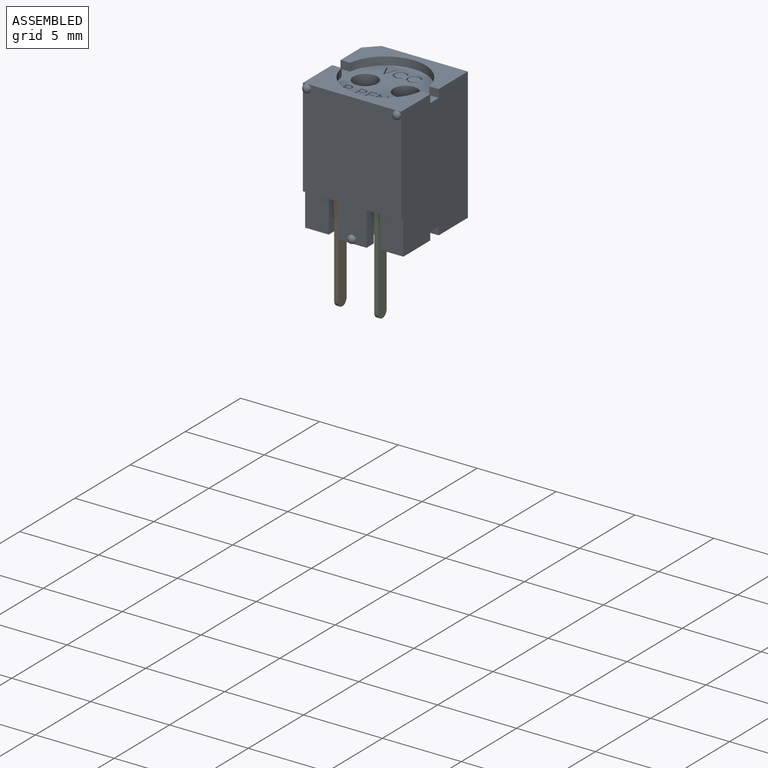
[diagram: assembled view]
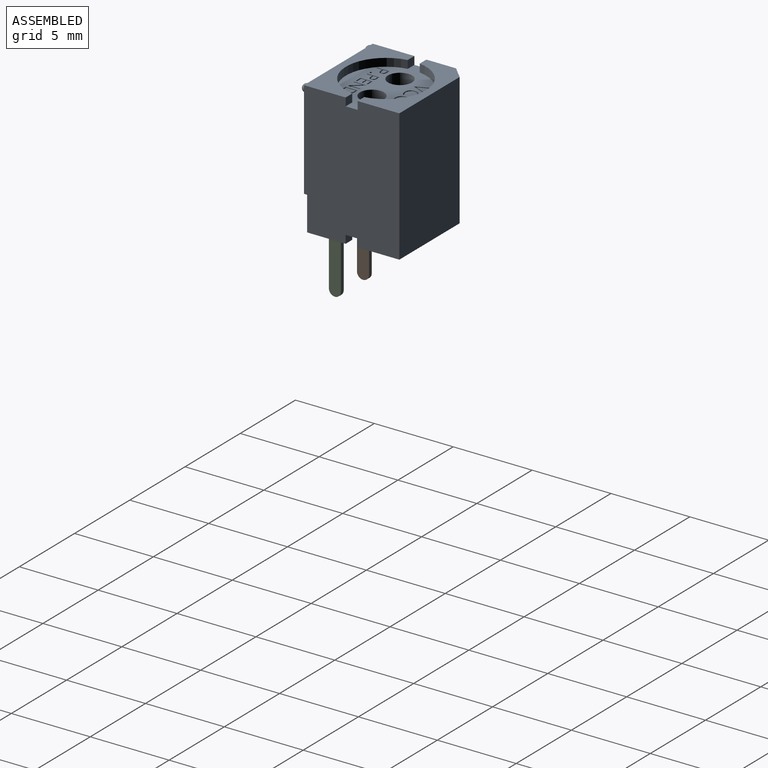
[diagram: assembled view, second angle]
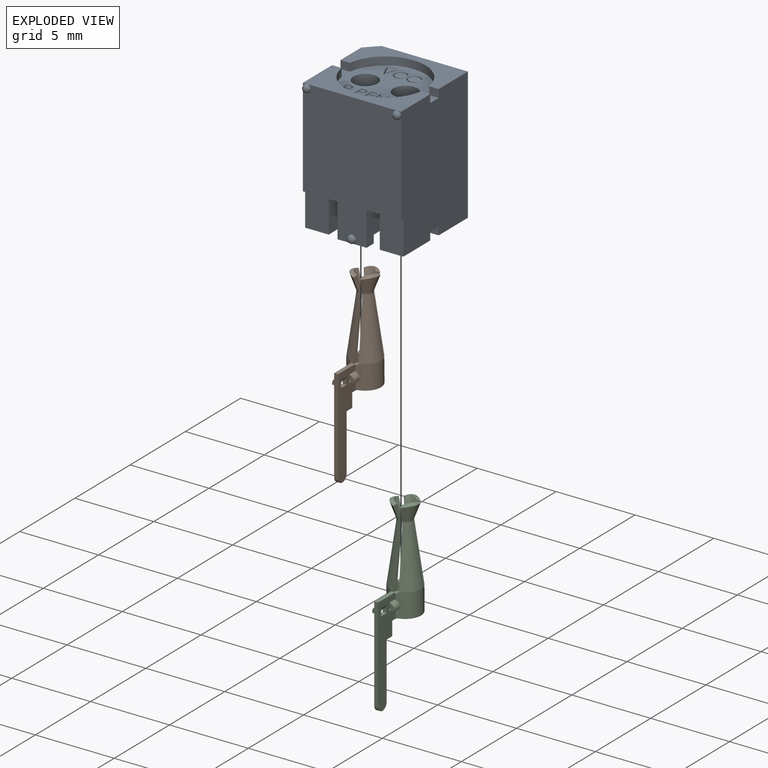
[diagram: exploded view]
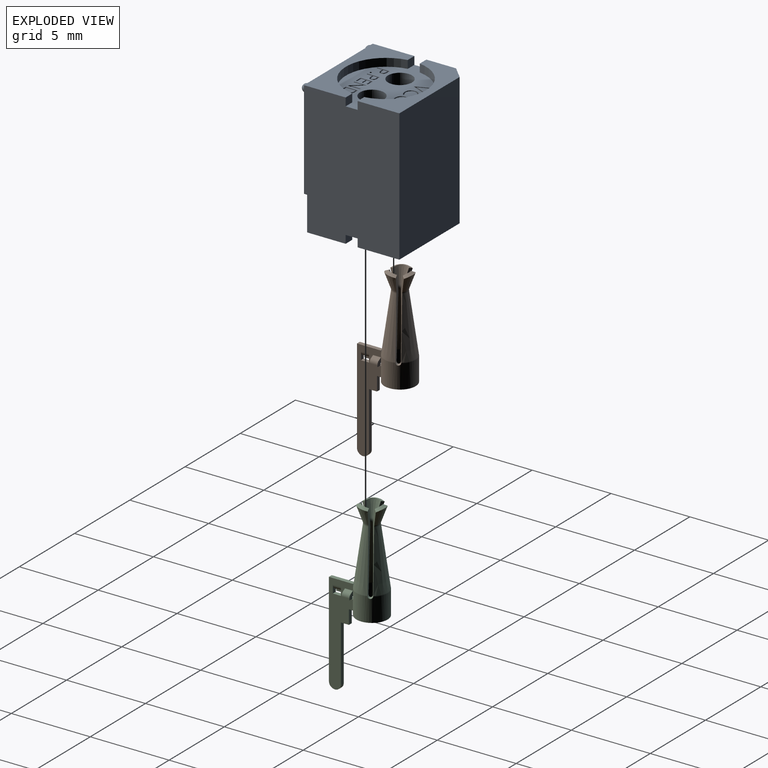
[diagram: exploded view, second angle]
ASSEMBLY  parts=3 mates=4
PART A: 162 faces, bbox 6.2x6.3x8.6 mm
  f0: extruded ~0.24x0.13mm, area 0mm2, adj f1,f120,f146,f147
  f1: extruded ~0.36x0.23mm, area 0.1mm2, adj f0,f2,f120,f147
  f2: extruded ~0.39x0.37mm, area 0.1mm2, adj f1,f39,f120,f147
  f3: extruded ~0.29x0.2mm, area 0mm2, adj f4,f62,f147,f148
  f4: extruded ~0.27x0.18mm, area 0mm2, adj f3,f5,f62,f147
  f5: extruded ~0.22x0.13mm, area 0mm2, adj f4,f58,f62,f147
  f6: cylinder r=0.19mm len=0.19mm, axis (0,0,1), area 0mm2, adj f7,f76,f80,f120
  f7: cylinder r=0.19mm len=0.19mm, axis (0,0,1), area 0mm2, adj f6,f8,f76,f120
  f8: cylinder r=0.89mm len=0.19mm, axis (0,0,1), area 0mm2, adj f7,f76,f120,f156
  f9: extruded ~0.2x0.13mm, area 0mm2, adj f76,f77,f82,f83
  f10: cylinder r=0.06mm len=0.13mm, axis (0,0,1), area 0mm2, adj f11,f13,f84,f120
  f11: cylinder r=0.06mm len=0.13mm, axis (0,0,1), area 0mm2, adj f10,f12,f84,f120
  f12: cylinder r=0.06mm len=0.13mm, axis (0,0,1), area 0mm2, adj f11,f13,f84,f120
  f13: extruded ~0.13x0.06mm, area 0mm2, adj f10,f12,f84,f120
  f14: cylinder r=1.07mm len=6.73mm, axis (0,0,1), area 43.9mm2, adj f28,f42,f74,f133,f144
  f15: cylinder r=0.76mm len=1.52mm, axis (0,0,1), area 3mm2, adj f42,f120
  f16: plane 0.6x0.25mm, normal (-0.92,-0.39,0), area 0.1mm2, adj f30,f35,f120,f159
  f17: plane 0.61x0.13mm, normal (-1,0,0), area 0.1mm2, adj f52,f58,f62,f147
  f18: plane 0.14x0.13mm, normal (0,1,0), area 0mm2, adj f91,f92,f94,f95
  f19: plane 0.13x0.02mm, normal (0,1,0), area 0mm2, adj f26,f71,f120,f151
  f20: plane 8.38x5.28mm, normal (-1,0,0), area 43.1mm2, adj f34,f37,f43,f47,f65,f66,f68,f120
  f21: plane 0.13x0.08mm, normal (-1,0,0), area 0mm2, adj f29,f63,f120,f155
  f22: plane 8.38x5.46mm, normal (0,1,0), area 45.8mm2, adj f37,f47,f124,f129
  f23: plane 0.13x0.07mm, normal (0,-1,0), area 0mm2, adj f35,f54,f120,f159
  f24: plane 2.16x1.81mm, normal (1,0,0), area 3.4mm2, adj f65,f68,f117,f125,f126,f143
  f25: cylinder r=0.2mm len=2.16mm, axis (0,0,1), area 0.7mm2, adj f51,f124,f141,f142
  f26: plane 0.76x0.13mm, normal (-1,0,0), area 0.1mm2, adj f19,f71,f120,f150
  f27: cylinder r=0.2mm len=2.16mm, axis (0,0,1), area 0.7mm2, adj f51,f124,f140,f142
  f28: plane 2.16x1.81mm, normal (-1,0,0), area 3.4mm2, adj f14,f60,f123,f133,f144,f145
  f29: plane 0.76x0.43mm, normal (0,0,1), area 0.1mm2, adj f21,f31,f63,f64,f72,f73,f75,f78
  f30: plane 0.13x0.07mm, normal (0,-1,0), area 0mm2, adj f16,f35,f120,f160
  f31: plane 0.36x0.13mm, normal (0,-1,0), area 0mm2, adj f29,f64,f73,f120
  f32: plane 0.25x0.13mm, normal (-1,0,0), area 0mm2, adj f55,f76,f77,f83
  f33: plane 0.6x0.5mm, normal (-0.77,-0.64,0), area 0.1mm2, adj f36,f71,f120,f149
  f34: plane 0.6x0.51mm, normal (0,-1,0), area 0.3mm2, adj f20,f37,f50,f120
  f35: plane 0.76x0.65mm, normal (0,0,1), area 0.1mm2, adj f16,f23,f30,f54,f158,f159,f160
  f36: plane 0.6x0.13mm, normal (1,0,0), area 0.1mm2, adj f33,f71,f120,f150
  f37: plane 6.22x2.64mm, normal (0,0,1), area 7.9mm2, adj f20,f22,f34,f47,f50,f129,f135
  f38: plane 0.15x0.13mm, normal (0,-1,0), area 0mm2, adj f85,f86,f91,f120
  f39: plane 0.24x0.13mm, normal (0,1,0), area 0mm2, adj f2,f61,f120,f147
  f40: plane 0.35x0.13mm, normal (-1,0,0), area 0mm2, adj f69,f90,f91,f120
  f41: plane 0.13x0.13mm, normal (-0.01,-1,0), area 0mm2, adj f91,f93,f94,f95
  f42: plane 2.13x2.13mm, normal (0,0,-1), area 1.8mm2, adj f14,f15
  f43: plane 0.6x0.51mm, normal (0,-1,0), area 0.3mm2, adj f20,f68,f124,f127
  f44: plane 0.13x0.07mm, normal (0,1,0), area 0mm2, adj f48,f53,f71,f120
  f45: plane 0.8x0.74mm, normal (0,0,1), area 0.1mm2, adj f70,f108,f109,f110,f111,f112,f113,f114
  f46: sphere r=0.25mm, area 0.4mm2, adj f124
  f47: plane 8.38x0.76mm, normal (-0.71,0.71,0), area 9mm2, adj f20,f22,f37,f124
  f48: plane 0.6x0.13mm, normal (-1,0,0), area 0.1mm2, adj f44,f71,f120,f151
  f49: plane 1.84x0.66mm, normal (0,0,-1), area 1mm2, adj f57,f74,f121,f128
  f50: cylinder r=2.54mm len=5.02mm, axis (0,0,-1), area 3.7mm2, adj f34,f37,f120,f135
  f51: plane 1.84x0.7mm, normal (0,0,-1), area 1.2mm2, adj f25,f27,f117,f140,f141,f142
  f52: plane 0.13x0.05mm, normal (0,1,0), area 0mm2, adj f17,f62,f147,f148
  f53: plane 0.76x0.13mm, normal (1,0,0), area 0.1mm2, adj f44,f71,f120,f149
  f54: plane 0.76x0.32mm, normal (-0.92,0.39,0), area 0.1mm2, adj f23,f35,f120,f158
  f55: plane 0.14x0.13mm, normal (0,1,0), area 0mm2, adj f32,f76,f82,f83
  f56: sphere r=0.25mm, area 0.4mm2, adj f121
  f57: plane 2.16x2.01mm, normal (-1,0,0), area 3.7mm2, adj f49,f117,f121,f128,f133,f143
  f58: plane 0.13x0.09mm, normal (0,-1,0), area 0mm2, adj f5,f17,f62,f147
  f59: sphere r=0.25mm, area 0.4mm2, adj f121
  f60: cylinder r=2.54mm len=1.58mm, axis (0,0,1), area 0.9mm2, adj f28,f123,f133,f137
  f61: plane 0.76x0.13mm, normal (1,0,0), area 0.1mm2, adj f39,f120,f146,f147
  f62: plane 0.61x0.49mm, normal (0,0,1), area 0.3mm2, adj f3,f4,f5,f17,f52,f58,f148
  f63: plane 0.36x0.13mm, normal (0,-1,0), area 0mm2, adj f21,f29,f120,f154
  f64: plane 0.13x0.08mm, normal (-1,0,0), area 0mm2, adj f29,f31,f72,f120
  f65: plane 2.16x1.49mm, normal (0,-1,0), area 3.2mm2, adj f20,f24,f125,f143
  f66: plane 0.6x0.51mm, normal (0,1,0), area 0.3mm2, adj f20,f68,f125,f126
  f67: plane 0.35x0.13mm, normal (-1,0,0), area 0mm2, adj f76,f120,f156,f157
  f68: plane 3.91x1.49mm, normal (0,0,-1), area 1.9mm2, adj f20,f24,f43,f66,f117,f126,f127,f141
  f69: plane 0.13x0.07mm, normal (0,1,0), area 0mm2, adj f40,f85,f91,f120
  f70: plane 0.13x0.06mm, normal (-0.61,0.79,0), area 0mm2, adj f45,f108,f109,f120
  f71: plane 0.76x0.59mm, normal (0,0,1), area 0.1mm2, adj f19,f26,f33,f36,f44,f48,f53,f149
  f72: plane 0.43x0.13mm, normal (0,1,0), area 0.1mm2, adj f29,f64,f78,f120
  f73: plane 0.29x0.13mm, normal (-1,0,0), area 0mm2, adj f29,f31,f120,f155
  f74: plane 2.16x2.01mm, normal (1,0,0), area 3.7mm2, adj f14,f49,f121,f128,f133,f144
  f75: plane 0.13x0.08mm, normal (-1,0,0), area 0mm2, adj f29,f120,f152,f153
  f76: plane 0.76x0.47mm, normal (0,0,1), area 0.1mm2, adj f6,f7,f8,f9,f32,f55,f67,f77
  f77: plane 0.13x0.13mm, normal (-0.01,-1,0), area 0mm2, adj f9,f32,f76,f83
  f78: plane 0.76x0.13mm, normal (1,0,0), area 0.1mm2, adj f29,f72,f120,f152
  f79: plane 0.15x0.13mm, normal (0,-1,0), area 0mm2, adj f76,f80,f81,f120
  f80: extruded ~0.17x0.13mm, area 0mm2, adj f6,f76,f79,f120
  f81: plane 0.76x0.13mm, normal (1,0,0), area 0.1mm2, adj f76,f79,f120,f157
  f82: extruded ~0.19x0.13mm, area 0mm2, adj f9,f55,f76,f83
  f83: plane 0.33x0.26mm, normal (0,0,1), area 0.1mm2, adj f9,f32,f55,f77,f82
  f84: plane 0.13x0.13mm, normal (0,0,1), area 0mm2, adj f10,f11,f12,f13
  f85: plane 0.76x0.13mm, normal (1,0,0), area 0.1mm2, adj f38,f69,f91,f120
  f86: cylinder r=0.77mm len=0.17mm, axis (0,0,1), area 0mm2, adj f38,f87,f91,f120
  f87: cylinder r=0.19mm len=0.19mm, axis (0,0,1), area 0mm2, adj f86,f88,f91,f120
  f88: cylinder r=0.19mm len=0.19mm, axis (0,0,1), area 0mm2, adj f87,f89,f91,f120
  f89: cylinder r=0.89mm len=0.19mm, axis (0,0,1), area 0mm2, adj f88,f90,f91,f120
  f90: plane 0.13x0.06mm, normal (0,1,0), area 0mm2, adj f40,f89,f91,f120
  f91: plane 0.76x0.47mm, normal (0,0,1), area 0.1mm2, adj f18,f38,f40,f41,f69,f85,f86,f87
  f92: extruded ~0.19x0.13mm, area 0mm2, adj f18,f91,f93,f95
  f93: extruded ~0.2x0.13mm, area 0mm2, adj f41,f91,f92,f95
  f94: plane 0.25x0.13mm, normal (-1,0,0), area 0mm2, adj f18,f41,f91,f95
  f95: plane 0.33x0.26mm, normal (0,0,1), area 0.1mm2, adj f18,f41,f92,f93,f94
  f96: cylinder r=0.4mm len=0.33mm, axis (0,0,1), area 0mm2, adj f97,f106,f107,f120
  f97: plane 0.13x0.06mm, normal (-0.61,0.79,0), area 0mm2, adj f96,f98,f107,f120
  f98: cylinder r=0.35mm len=0.28mm, axis (0,0,1), area 0mm2, adj f97,f99,f107,f120
  f99: extruded ~0.34x0.32mm, area 0.1mm2, adj f98,f100,f107,f120
  f100: extruded ~0.34x0.32mm, area 0.1mm2, adj f99,f101,f107,f120
  f101: cylinder r=0.35mm len=0.27mm, axis (0,0,1), area 0mm2, adj f100,f102,f107,f120
  f102: plane 0.13x0.06mm, normal (-0.6,-0.8,0), area 0mm2, adj f101,f103,f107,f120
  f103: cylinder r=0.4mm len=0.33mm, axis (0,0,1), area 0mm2, adj f102,f104,f107,f120
  f104: extruded ~0.31x0.13mm, area 0mm2, adj f103,f105,f107,f120
  f105: cylinder r=0.4mm len=0.27mm, axis (0,0,1), area 0mm2, adj f104,f106,f107,f120
  f106: extruded ~0.41x0.4mm, area 0.1mm2, adj f96,f105,f107,f120
  f107: plane 0.8x0.74mm, normal (0,0,1), area 0.1mm2, adj f96,f97,f98,f99,f100,f101,f102,f103
  f108: cylinder r=0.4mm len=0.33mm, axis (0,0,1), area 0mm2, adj f45,f70,f120,f161
  f109: cylinder r=0.35mm len=0.28mm, axis (0,0,1), area 0mm2, adj f45,f70,f110,f120
  f110: extruded ~0.34x0.32mm, area 0.1mm2, adj f45,f109,f111,f120
  f111: extruded ~0.34x0.32mm, area 0.1mm2, adj f45,f110,f112,f120
  f112: cylinder r=0.35mm len=0.27mm, axis (0,0,1), area 0mm2, adj f45,f111,f113,f120
  f113: plane 0.13x0.06mm, normal (-0.6,-0.8,0), area 0mm2, adj f45,f112,f114,f120
  f114: cylinder r=0.4mm len=0.33mm, axis (0,0,1), area 0mm2, adj f45,f113,f115,f120
  f115: extruded ~0.31x0.13mm, area 0mm2, adj f45,f114,f116,f120
  f116: cylinder r=0.4mm len=0.27mm, axis (0,0,1), area 0mm2, adj f45,f115,f120,f161
  f117: cylinder r=1.07mm len=6.73mm, axis (0,0,1), area 42.8mm2, adj f24,f51,f57,f68,f133,f139,f140,f141
  f118: cylinder r=0.76mm len=1.52mm, axis (0,0,1), area 3mm2, adj f120,f139
  f119: sphere r=0.25mm, area 0.4mm2, adj f124
  f120: plane 6.22x5.08mm, normal (0,0,1), area 16mm2, adj f0,f1,f2,f6,f7,f8,f10,f11
  f121: plane 8.38x6.22mm, normal (0,-1,0), area 42.1mm2, adj f20,f49,f56,f57,f59,f74,f122,f129
  f122: sphere r=0.25mm, area 0.4mm2, adj f121
  f123: plane 2.44x1.49mm, normal (0,0,-1), area 2.7mm2, adj f28,f60,f129,f137,f145
  f124: plane 6.22x2.64mm, normal (0,0,-1), area 7.1mm2, adj f20,f22,f25,f27,f43,f46,f47,f119
  f125: plane 2.44x1.49mm, normal (0,0,-1), area 2.7mm2, adj f20,f24,f65,f66,f126
  f126: cylinder r=2.54mm len=1.58mm, axis (0,0,1), area 0.9mm2, adj f24,f66,f68,f125
  f127: cylinder r=2.54mm len=1.58mm, axis (0,0,1), area 0.9mm2, adj f43,f68,f124,f141
  f128: cylinder r=2.54mm len=1.84mm, axis (0,0,1), area 1mm2, adj f49,f57,f74,f133
  f129: plane 8.38x6.05mm, normal (1,0,0), area 49.5mm2, adj f22,f37,f120,f121,f123,f124,f130,f133
  f130: plane 6.22x2.64mm, normal (0,0,1), area 8.2mm2, adj f20,f121,f129,f131,f134,f136
  f131: cylinder r=2.54mm len=5.02mm, axis (0,0,-1), area 3.7mm2, adj f120,f130,f134,f136
  f132: cylinder r=2.54mm len=3.43mm, axis (0,0,1), area 2.3mm2, adj f124,f133,f138,f140
  f133: plane 5.08x4.03mm, normal (0,0,-1), area 9.7mm2, adj f14,f28,f57,f60,f74,f117,f128,f129
  f134: plane 0.6x0.51mm, normal (0,1,0), area 0.3mm2, adj f20,f120,f130,f131
  f135: plane 0.6x0.51mm, normal (0,-1,0), area 0.3mm2, adj f37,f50,f120,f129
  f136: plane 0.6x0.51mm, normal (0,1,0), area 0.3mm2, adj f120,f129,f130,f131
  f137: plane 0.6x0.51mm, normal (0,1,0), area 0.3mm2, adj f60,f123,f129,f133
  f138: plane 0.6x0.51mm, normal (0,-1,0), area 0.3mm2, adj f124,f129,f132,f133
  f139: plane 2.13x2.13mm, normal (0,0,-1), area 1.8mm2, adj f117,f118
  f140: plane 2.16x1.63mm, normal (-1,0,0), area 2.8mm2, adj f27,f51,f117,f124,f132,f133
  f141: plane 2.16x1.63mm, normal (1,0,0), area 3mm2, adj f25,f51,f68,f117,f124,f127
  f142: plane 2.16x0.29mm, normal (0,-1,0), area 0.6mm2, adj f25,f27,f51,f124
  f143: plane 2.19x2.01mm, normal (0,0,-1), area 1.7mm2, adj f20,f24,f57,f65,f117,f121
  f144: plane 2.19x2.01mm, normal (0,0,-1), area 1.7mm2, adj f14,f28,f74,f121,f129,f145
  f145: plane 2.16x1.49mm, normal (0,-1,0), area 3.2mm2, adj f28,f123,f129,f144
  f146: plane 0.15x0.13mm, normal (0,-1,0), area 0mm2, adj f0,f61,f120,f147
  f147: plane 0.76x0.63mm, normal (0,0,1), area 0.2mm2, adj f0,f1,f2,f3,f4,f5,f17,f39
  f148: extruded ~0.23x0.13mm, area 0mm2, adj f3,f52,f62,f147
  f149: plane 0.13x0.01mm, normal (0,-1,0), area 0mm2, adj f33,f53,f71,f120
  f150: plane 0.13x0.07mm, normal (0,-1,0), area 0mm2, adj f26,f36,f71,f120
  f151: plane 0.6x0.5mm, normal (0.77,0.64,0), area 0.1mm2, adj f19,f48,f71,f120
  f152: plane 0.43x0.13mm, normal (0,-1,0), area 0.1mm2, adj f29,f75,f78,f120
  f153: plane 0.36x0.13mm, normal (0,1,0), area 0mm2, adj f29,f75,f120,f154
  f154: plane 0.23x0.13mm, normal (-1,0,0), area 0mm2, adj f29,f63,f120,f153
  f155: plane 0.36x0.13mm, normal (0,1,0), area 0mm2, adj f21,f29,f73,f120
  f156: plane 0.13x0.06mm, normal (0,1,0), area 0mm2, adj f8,f67,f76,f120
  f157: plane 0.13x0.07mm, normal (0,1,0), area 0mm2, adj f67,f76,f81,f120
  f158: plane 0.13x0.01mm, normal (0,1,0), area 0mm2, adj f35,f54,f120,f160
  f159: plane 0.6x0.25mm, normal (0.92,-0.39,0), area 0.1mm2, adj f16,f23,f35,f120
  f160: plane 0.76x0.32mm, normal (0.92,0.39,0), area 0.1mm2, adj f30,f35,f120,f158
  f161: extruded ~0.41x0.4mm, area 0.1mm2, adj f45,f108,f116,f120
PART B: 89 faces, bbox 2.2x3.7x11.3 mm
  f0: cone r=0.74mm half-angle=8deg, axis (0,0,1), area 2.9mm2, adj f12,f23,f36,f88
  f1: cone r=0.22mm half-angle=20deg, axis (0,0,-1), area 0.7mm2, adj f12,f16,f80,f83,f88
  f2: plane 0.95x0.42mm, normal (0.76,-0.65,0), area 0.2mm2, adj f3,f4,f48,f84
  f3: bspline ~0.52x0.41mm, area 0.1mm2, adj f2,f4,f48,f78
  f4: cone r=0.46mm half-angle=20deg, axis (0,0,-1), area 0.9mm2, adj f2,f3,f13,f37,f78
  f5: torus R=0.74mm, axis (0,0,-1), area 0mm2, adj f27,f42,f44
  f6: cylinder r=0.03mm len=0.51mm, axis (0,1,0), area 0mm2, adj f53,f54,f57,f58
  f7: plane 3.56x0.25mm, normal (0,1,0), area 0.9mm2, adj f8,f9,f45,f52
  f8: cylinder r=0.38mm len=0.76mm, axis (-1,0,0), area 0.3mm2, adj f7,f45,f52,f85
  f9: plane 0.51x0.25mm, normal (0,0,1), area 0.1mm2, adj f7,f45,f52,f76
  f10: torus R=0.72mm, axis (0,0,1), area 0.1mm2, adj f38,f48,f49,f84
  f11: torus R=0.72mm, axis (0,0,1), area 0.1mm2, adj f24,f50,f79,f87
  f12: torus R=0.72mm, axis (0,0,1), area 0.1mm2, adj f0,f1,f14,f88
  f13: torus R=0.72mm, axis (0,0,1), area 0.1mm2, adj f4,f38,f41,f84
  f14: bspline ~0.27x0.24mm, area 0mm2, adj f12,f22,f36,f83
  f15: bspline ~3.78x0.63mm, area 1mm2, adj f35,f38,f41,f49
  f16: bspline ~0.63x0.29mm, area 0.1mm2, adj f1,f26,f80,f83
  f17: bspline ~0.6x0.51mm, area 0.2mm2, adj f19,f43,f50,f87
  f18: bspline ~3.77x0.71mm, area 1mm2, adj f24,f25,f79,f82
  f19: bspline ~0.63x0.29mm, area 0.1mm2, adj f17,f20,f43,f50
  f20: bspline ~1x0.53mm, area 0.2mm2, adj f19,f43,f50,f79
  f21: torus R=0.72mm, axis (0,0,1), area 0.1mm2, adj f25,f43,f79,f87
  f22: torus R=0.72mm, axis (0,0,1), area 0.1mm2, adj f14,f26,f42,f88
  f23: cylinder r=0.74mm len=1.51mm, axis (0,0,-1), area 6.3mm2, adj f0,f24,f28,f35,f49,f51,f82,f87
  f24: cone r=0.74mm half-angle=8deg, axis (0,0,1), area 2.9mm2, adj f11,f18,f23,f87
  f25: cone r=0.99mm half-angle=8deg, axis (0,0,1), area 4.3mm2, adj f18,f21,f47,f87
  f26: cone r=0.46mm half-angle=20deg, axis (0,0,-1), area 1mm2, adj f16,f22,f80,f83,f88
  f27: cylinder r=0.99mm len=1.98mm, axis (0,0,-1), area 8.5mm2, adj f5,f28,f35,f44,f46,f47,f82,f87
  f28: plane 2.36x1.98mm, normal (0,0,1), area 1.4mm2, adj f23,f27,f44,f45,f51,f52,f76,f87
  f29: plane 0.51x0.25mm, normal (0,1,0), area 0.1mm2, adj f40,f45,f52,f66,f74
  f30: plane 0.01x0mm, normal (0,0,1), area 0mm2, adj f31,f44,f73
  f31: plane 0x0mm, normal (0.05,-1,0), area 0mm2, adj f30,f44,f73
  f32: plane 0.49x0.26mm, normal (0.05,-1,0), area 0.1mm2, adj f40,f44,f51,f66,f74
  f33: plane 0.51x0.25mm, normal (0,-1,0), area 0.1mm2, adj f34,f45,f52,f56,f57
  f34: plane 0.51x0.25mm, normal (0,0,-1), area 0.1mm2, adj f33,f39,f45,f52
  f35: bspline ~0.36x0.35mm, area 0.1mm2, adj f15,f23,f27,f36
  f36: bspline ~3.74x0.71mm, area 0.9mm2, adj f0,f14,f35,f42
  f37: plane 0.95x0.42mm, normal (-0.76,-0.65,0), area 0.2mm2, adj f4,f38,f48,f78
  f38: bspline ~0.24x0.21mm, area 0mm2, adj f10,f13,f15,f37
  f39: plane 0.51x0.25mm, normal (0,1,0), area 0.1mm2, adj f34,f45,f52,f56,f57
  f40: plane 0.52x0.25mm, normal (0,0,-1), area 0.1mm2, adj f29,f32,f44,f45,f51,f52
  f41: cone r=0.99mm half-angle=8deg, axis (0,0,1), area 4.4mm2, adj f13,f15,f46,f81
  f42: cone r=0.99mm half-angle=8deg, axis (0,0,1), area 4.4mm2, adj f5,f22,f36,f88
  f43: cone r=0.46mm half-angle=20deg, axis (0,0,-1), area 1mm2, adj f17,f19,f20,f21,f87
  f44: cylinder r=0.17mm len=1.53mm, axis (0,0,-1), area 0.3mm2, adj f5,f27,f28,f30,f31,f32,f40,f45
  f45: plane 6.35x1.52mm, normal (-1,0,0), area 5.9mm2, adj f7,f8,f9,f28,f29,f33,f34,f39
  f46: torus R=0.74mm, axis (0,0,-1), area 0mm2, adj f27,f41
  f47: torus R=0.74mm, axis (0,0,-1), area 0.1mm2, adj f25,f27,f87
  f48: cone r=0.22mm half-angle=20deg, axis (0,0,-1), area 0.6mm2, adj f2,f3,f10,f37,f78
  f49: cone r=0.74mm half-angle=8deg, axis (0,0,1), area 3mm2, adj f10,f15,f23,f81
  f50: cone r=0.22mm half-angle=20deg, axis (0,0,-1), area 0.6mm2, adj f11,f17,f19,f20,f87
  f51: cylinder r=0.43mm len=1.52mm, axis (0,0,-1), area 0.8mm2, adj f23,f28,f32,f40,f52,f63,f64,f86
  f52: plane 6.35x1.52mm, normal (1,0,0), area 5.9mm2, adj f7,f8,f9,f28,f29,f33,f34,f39
  f53: plane 0.46x0.31mm, normal (0,-1,0), area 0.1mm2, adj f6,f52,f55,f57,f58,f59,f60,f61
  f54: plane 0.46x0.31mm, normal (0,1,0), area 0.1mm2, adj f6,f52,f55,f57,f58,f59,f60,f61
  f55: cylinder r=0.03mm len=0.51mm, axis (0,1,0), area 0mm2, adj f52,f53,f54,f62
  f56: cylinder r=0.28mm len=0.51mm, axis (0,1,0), area 0.1mm2, adj f33,f39,f45,f57
  f57: plane 0.51x0.15mm, normal (-0.5,0,0.87), area 0.1mm2, adj f6,f33,f39,f53,f54,f56
  f58: plane 0.51x0.11mm, normal (-1,0,0), area 0.1mm2, adj f6,f53,f54,f59
  f59: plane 0.51x0.25mm, normal (0,0,1), area 0.1mm2, adj f53,f54,f58,f60
  f60: plane 0.51x0.11mm, normal (1,0,0), area 0.1mm2, adj f53,f54,f59,f61
  f61: cylinder r=0.28mm len=0.51mm, axis (0,1,0), area 0.1mm2, adj f53,f54,f60,f62
  f62: plane 0.51x0.15mm, normal (0.5,0,-0.87), area 0.1mm2, adj f53,f54,f55,f61
  f63: plane 0.02x0mm, normal (-0.05,1,0), area 0mm2, adj f51,f64,f74
  f64: plane 0.02x0mm, normal (0,0,-1), area 0mm2, adj f51,f63,f74
  f65: plane 0.46x0.3mm, normal (0,-1,0), area 0.1mm2, adj f45,f66,f67,f68,f69,f70,f71,f72
  f66: plane 0.51x0.15mm, normal (0.5,0,0.87), area 0.1mm2, adj f29,f32,f65,f67,f74,f75
  f67: cylinder r=0.03mm len=0.51mm, axis (0,1,0), area 0mm2, adj f65,f66,f68,f75
  f68: plane 0.51x0.11mm, normal (1,0,0), area 0.1mm2, adj f65,f67,f69,f75
  f69: plane 0.51x0.25mm, normal (0,0,1), area 0.1mm2, adj f65,f68,f70,f75
  f70: plane 0.49x0.11mm, normal (-1,0,0), area 0.1mm2, adj f65,f69,f71,f75
  f71: cylinder r=0.28mm len=0.5mm, axis (0,1,0), area 0.1mm2, adj f65,f70,f72,f75
  f72: plane 0.51x0.15mm, normal (-0.5,0,-0.87), area 0.1mm2, adj f65,f71,f73,f75
  f73: cylinder r=0.03mm len=0.51mm, axis (0,1,0), area 0mm2, adj f30,f31,f45,f65,f72,f75
  f74: cylinder r=0.28mm len=0.52mm, axis (0,1,0), area 0.2mm2, adj f29,f32,f52,f63,f64,f66
  f75: plane 0.46x0.31mm, normal (-0.05,1,0), area 0.1mm2, adj f44,f66,f67,f68,f69,f70,f71,f72
  f76: plane 0.89x0.25mm, normal (0,1,0), area 0.2mm2, adj f9,f28,f45,f52
  f77: plane 1.52x0.25mm, normal (0,0,-1), area 0.4mm2, adj f45,f52,f85,f86
  f78: bspline ~0.52x0.41mm, area 0.1mm2, adj f3,f4,f37,f48
  f79: bspline ~0.27x0.24mm, area 0mm2, adj f11,f18,f20,f21
  f80: bspline ~0.61x0.51mm, area 0.2mm2, adj f1,f16,f26,f88
  f81: bspline ~3.76x0.63mm, area 0.9mm2, adj f41,f49,f82,f84
  f82: bspline ~0.36x0.35mm, area 0.1mm2, adj f18,f23,f27,f81
  f83: bspline ~1.01x0.53mm, area 0.2mm2, adj f1,f14,f16,f26
  f84: bspline ~0.24x0.21mm, area 0mm2, adj f2,f10,f13,f81
  f85: plane 5.97x0.25mm, normal (0,-1,0), area 1.5mm2, adj f8,f45,f52,f77
  f86: bspline ~0.41x0.39mm, area 0.1mm2, adj f44,f51,f77,f88
  f87: plane 6.33x0.75mm, normal (-0.96,-0.28,0), area 1.6mm2, adj f11,f17,f21,f23,f24,f25,f27,f28
  f88: plane 4.83x0.76mm, normal (0.97,-0.26,0), area 1.2mm2, adj f0,f1,f12,f22,f26,f42,f80,f86
PART C: same geometry as B
PLACE A at identity fixed
PLACE B rot(axis=(0,1,0),180deg) t=(35.3,1.34,2.16)mm
PLACE C rot(axis=(0,1,0),180deg) t=(37.84,1.34,2.16)mm
MATE planar C.f77 <-> A.f144  axis (0,0,1) through (18.22,7.73,2.16)mm
MATE slider B.f0 <-> A.f117  axis (0,0,1) through (15.68,9.62,0.63)mm
MATE slider C.f0 <-> A.f14  axis (0,0,-1) through (18.22,9.62,2.14)mm
MATE planar B.f77 <-> A.f143  axis (0,0,1) through (15.68,7.73,2.16)mm
